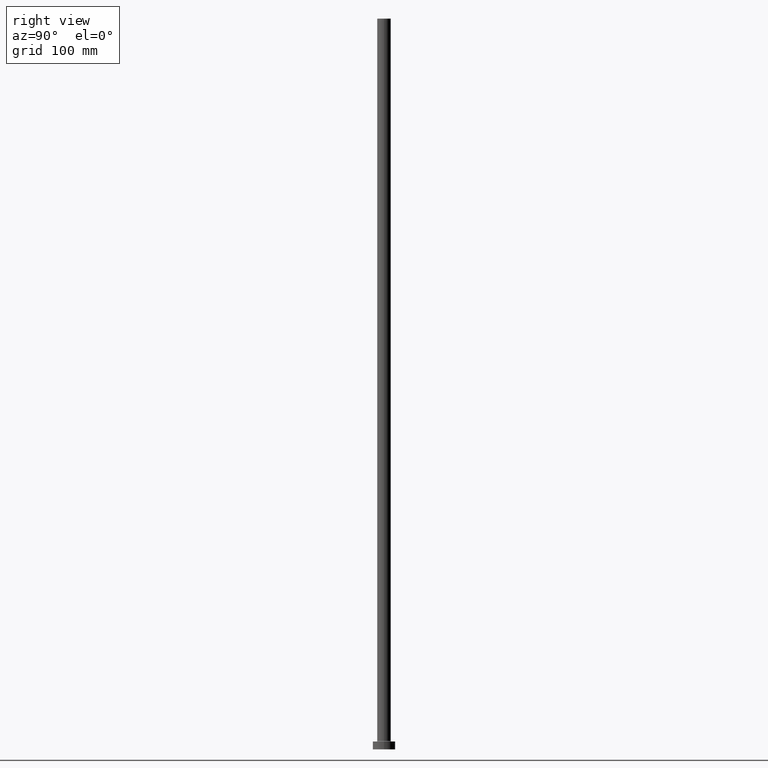
[diagram: clean part render]
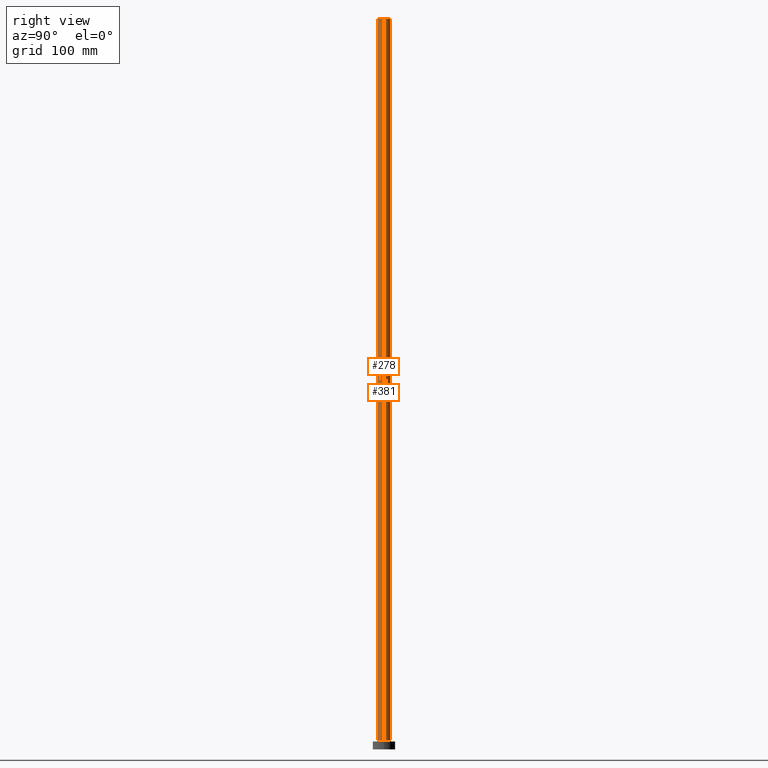
[diagram: same view with one multi-face feature highlighted, each face labeled with its STEP entity id]
A machine part, right view. The highlighted faces form ONE feature: a constant-radius fillet chain: 2 tangent blend faces with common blend radius 6 mm. The faces share edges in the B-rep.
Their STEP definitions:
[1] entity #381 (Cylinder):
#12 = AXIS2_PLACEMENT_3D ( 'NONE', #153, #115, #151 ) ;
#16 = DIRECTION ( 'NONE',  ( -0.000000000000000000, -0.000000000000000000, -1.000000000000000000 ) ) ;
#19 = CYLINDRICAL_SURFACE ( 'NONE', #386, 6.000000000000000888 ) ;
#24 = CIRCLE ( 'NONE', #395, 6.000000000000000888 ) ;
#37 = ORIENTED_EDGE ( 'NONE', *, *, #413, .F. ) ;
#62 = CARTESIAN_POINT ( 'NONE',  ( 6.000000000000000888, 7.347880794884120722E-16, 7.700000000000040146 ) ) ;
#114 = EDGE_CURVE ( 'NONE', #211, #387, #436, .T. ) ;
#115 = DIRECTION ( 'NONE',  ( 0.000000000000000000, 0.000000000000000000, 1.000000000000000000 ) ) ;
#119 = DIRECTION ( 'NONE',  ( 0.000000000000000000, 0.000000000000000000, 1.000000000000000000 ) ) ;
#151 = DIRECTION ( 'NONE',  ( 1.000000000000000000, 0.000000000000000000, 0.000000000000000000 ) ) ;
#153 = CARTESIAN_POINT ( 'NONE',  ( 0.000000000000000000, 0.000000000000000000, 7.700000000000040146 ) ) ;
#177 = ORIENTED_EDGE ( 'NONE', *, *, #370, .T. ) ;
#179 = ORIENTED_EDGE ( 'NONE', *, *, #192, .T. ) ;
#192 = EDGE_CURVE ( 'NONE', #393, #387, #193, .T. ) ;
#193 = CIRCLE ( 'NONE', #12, 6.000000000000000888 ) ;
#194 = CARTESIAN_POINT ( 'NONE',  ( 6.000000000000000888, 7.347880794884120722E-16, 650.0000000000000000 ) ) ;
#196 = CARTESIAN_POINT ( 'NONE',  ( 0.000000000000000000, 0.000000000000000000, 650.0000000000000000 ) ) ;
#211 = VERTEX_POINT ( 'NONE', #404 ) ;
#229 = DIRECTION ( 'NONE',  ( -0.000000000000000000, -0.000000000000000000, -1.000000000000000000 ) ) ;
#264 = DIRECTION ( 'NONE',  ( 1.000000000000000000, 0.000000000000000000, 0.000000000000000000 ) ) ;
#266 = ORIENTED_EDGE ( 'NONE', *, *, #114, .F. ) ;
#274 = CARTESIAN_POINT ( 'NONE',  ( 6.000000000000000888, 7.347880794884120722E-16, 650.0000000000000000 ) ) ;
#279 = EDGE_LOOP ( 'NONE', ( #37, #177, #179, #266 ) ) ;
#294 = DIRECTION ( 'NONE',  ( -0.000000000000000000, -0.000000000000000000, -1.000000000000000000 ) ) ;
#299 = CARTESIAN_POINT ( 'NONE',  ( 0.000000000000000000, 0.000000000000000000, 650.0000000000000000 ) ) ;
#304 = FACE_OUTER_BOUND ( 'NONE', #279, .T. ) ;
#309 = LINE ( 'NONE', #274, #310 ) ;
#310 = VECTOR ( 'NONE', #229, 1000.000000000000000 ) ;
#330 = CARTESIAN_POINT ( 'NONE',  ( -6.000000000000000888, 0.000000000000000000, 650.0000000000000000 ) ) ;
#370 = EDGE_CURVE ( 'NONE', #415, #393, #309, .T. ) ;
#375 = CARTESIAN_POINT ( 'NONE',  ( -6.000000000000000888, 0.000000000000000000, 7.700000000000040146 ) ) ;
#381 = ADVANCED_FACE ( 'NONE', ( #304 ), #19, .T. ) ;
#386 = AXIS2_PLACEMENT_3D ( 'NONE', #196, #16, #447 ) ;
#387 = VERTEX_POINT ( 'NONE', #375 ) ;
#393 = VERTEX_POINT ( 'NONE', #62 ) ;
#395 = AXIS2_PLACEMENT_3D ( 'NONE', #299, #119, #264 ) ;
#404 = CARTESIAN_POINT ( 'NONE',  ( -6.000000000000000888, 0.000000000000000000, 650.0000000000000000 ) ) ;
#413 = EDGE_CURVE ( 'NONE', #415, #211, #24, .T. ) ;
#415 = VERTEX_POINT ( 'NONE', #194 ) ;
#418 = VECTOR ( 'NONE', #294, 1000.000000000000000 ) ;
#436 = LINE ( 'NONE', #330, #418 ) ;
#447 = DIRECTION ( 'NONE',  ( -1.000000000000000000, 0.000000000000000000, 0.000000000000000000 ) ) ;
[2] entity #278 (Cylinder):
#1 = CIRCLE ( 'NONE', #147, 6.000000000000000888 ) ;
#11 = DIRECTION ( 'NONE',  ( -1.000000000000000000, 0.000000000000000000, 0.000000000000000000 ) ) ;
#23 = ORIENTED_EDGE ( 'NONE', *, *, #114, .T. ) ;
#32 = DIRECTION ( 'NONE',  ( 1.000000000000000000, 0.000000000000000000, 0.000000000000000000 ) ) ;
#42 = DIRECTION ( 'NONE',  ( 1.000000000000000000, 0.000000000000000000, 0.000000000000000000 ) ) ;
#60 = ORIENTED_EDGE ( 'NONE', *, *, #426, .F. ) ;
#62 = CARTESIAN_POINT ( 'NONE',  ( 6.000000000000000888, 7.347880794884120722E-16, 7.700000000000040146 ) ) ;
#78 = CIRCLE ( 'NONE', #343, 6.000000000000000888 ) ;
#113 = DIRECTION ( 'NONE',  ( 0.000000000000000000, 0.000000000000000000, 1.000000000000000000 ) ) ;
#114 = EDGE_CURVE ( 'NONE', #211, #387, #436, .T. ) ;
#147 = AXIS2_PLACEMENT_3D ( 'NONE', #422, #357, #32 ) ;
#150 = CARTESIAN_POINT ( 'NONE',  ( 0.000000000000000000, 0.000000000000000000, 7.700000000000040146 ) ) ;
#156 = EDGE_CURVE ( 'NONE', #387, #393, #78, .T. ) ;
#161 = ORIENTED_EDGE ( 'NONE', *, *, #370, .F. ) ;
#185 = CARTESIAN_POINT ( 'NONE',  ( 0.000000000000000000, 0.000000000000000000, 650.0000000000000000 ) ) ;
#191 = FACE_OUTER_BOUND ( 'NONE', #320, .T. ) ;
#194 = CARTESIAN_POINT ( 'NONE',  ( 6.000000000000000888, 7.347880794884120722E-16, 650.0000000000000000 ) ) ;
#211 = VERTEX_POINT ( 'NONE', #404 ) ;
#229 = DIRECTION ( 'NONE',  ( -0.000000000000000000, -0.000000000000000000, -1.000000000000000000 ) ) ;
#274 = CARTESIAN_POINT ( 'NONE',  ( 6.000000000000000888, 7.347880794884120722E-16, 650.0000000000000000 ) ) ;
#278 = ADVANCED_FACE ( 'NONE', ( #191 ), #290, .T. ) ;
#290 = CYLINDRICAL_SURFACE ( 'NONE', #453, 6.000000000000000888 ) ;
#294 = DIRECTION ( 'NONE',  ( -0.000000000000000000, -0.000000000000000000, -1.000000000000000000 ) ) ;
#309 = LINE ( 'NONE', #274, #310 ) ;
#310 = VECTOR ( 'NONE', #229, 1000.000000000000000 ) ;
#320 = EDGE_LOOP ( 'NONE', ( #161, #60, #23, #448 ) ) ;
#330 = CARTESIAN_POINT ( 'NONE',  ( -6.000000000000000888, 0.000000000000000000, 650.0000000000000000 ) ) ;
#343 = AXIS2_PLACEMENT_3D ( 'NONE', #150, #113, #42 ) ;
#357 = DIRECTION ( 'NONE',  ( 0.000000000000000000, 0.000000000000000000, 1.000000000000000000 ) ) ;
#370 = EDGE_CURVE ( 'NONE', #415, #393, #309, .T. ) ;
#375 = CARTESIAN_POINT ( 'NONE',  ( -6.000000000000000888, 0.000000000000000000, 7.700000000000040146 ) ) ;
#387 = VERTEX_POINT ( 'NONE', #375 ) ;
#393 = VERTEX_POINT ( 'NONE', #62 ) ;
#399 = DIRECTION ( 'NONE',  ( -0.000000000000000000, -0.000000000000000000, -1.000000000000000000 ) ) ;
#404 = CARTESIAN_POINT ( 'NONE',  ( -6.000000000000000888, 0.000000000000000000, 650.0000000000000000 ) ) ;
#415 = VERTEX_POINT ( 'NONE', #194 ) ;
#418 = VECTOR ( 'NONE', #294, 1000.000000000000000 ) ;
#422 = CARTESIAN_POINT ( 'NONE',  ( 0.000000000000000000, 0.000000000000000000, 650.0000000000000000 ) ) ;
#426 = EDGE_CURVE ( 'NONE', #211, #415, #1, .T. ) ;
#436 = LINE ( 'NONE', #330, #418 ) ;
#448 = ORIENTED_EDGE ( 'NONE', *, *, #156, .T. ) ;
#453 = AXIS2_PLACEMENT_3D ( 'NONE', #185, #399, #11 ) ;